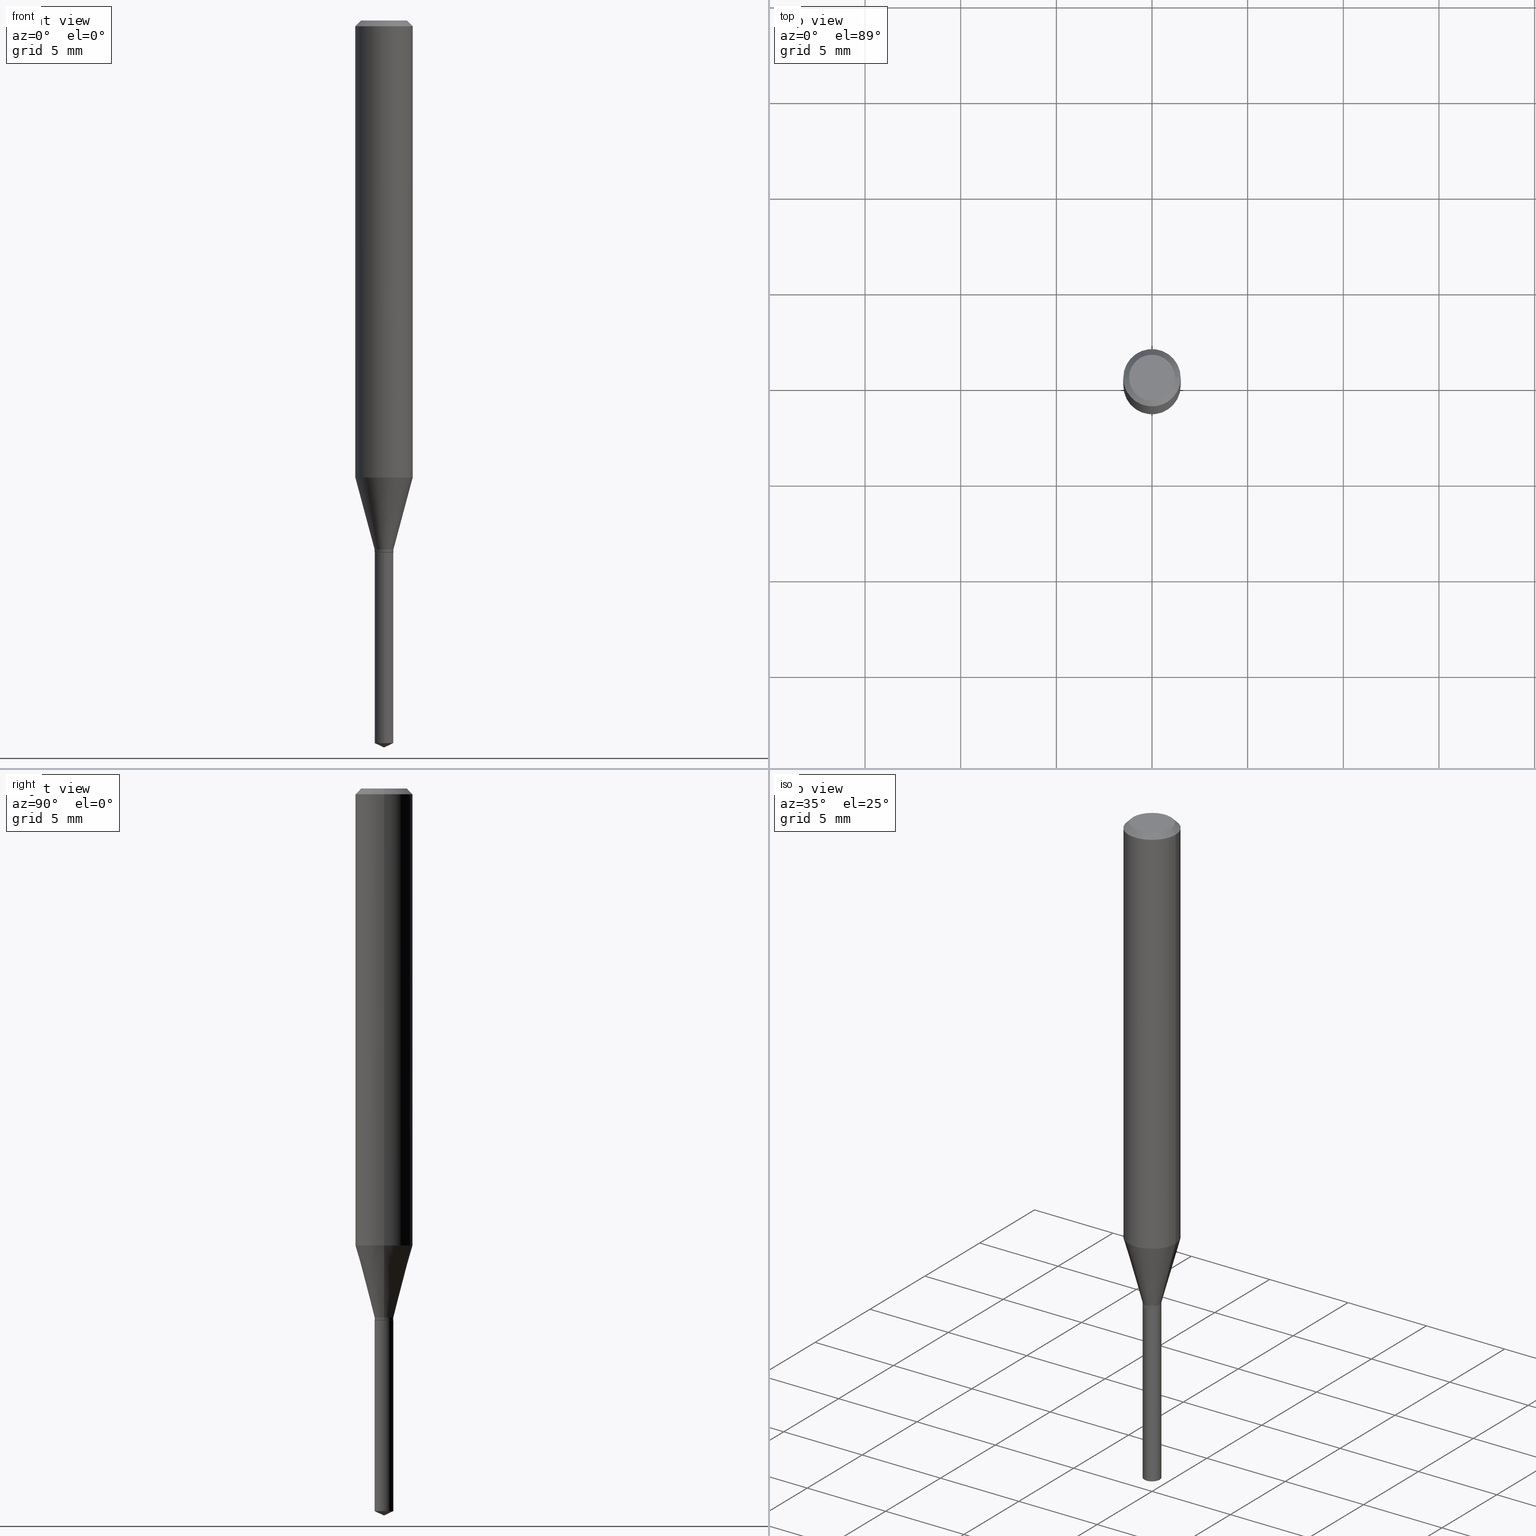
[diagram: canonical four-view strip — front | top / right | iso, engineering-drawing reading convention]
A machine part, canonical four-view strip (front | top / right | iso — engineering-drawing reading convention). The complete STEP part file that produces these views, byte-faithful:
ISO-10303-21;
HEADER;
FILE_DESCRIPTION (( 'STEP AP203' ),
    '1' );
FILE_NAME ('07822.STEP',
    '2024-04-24T03:48:45',
    ( '' ),
    ( '' ),
    'SwSTEP 2.0',
    'SolidWorks 2023',
    '' );
FILE_SCHEMA (( 'CONFIG_CONTROL_DESIGN' ));
ENDSEC;

DATA;
#1 = VERTEX_POINT ( 'NONE', #330 ) ;
#2 = CARTESIAN_POINT ( 'NONE',  ( 3.658668015054778287E-29, -5.223602213574301462E-15, -1.496099999999999985 ) ) ;
#3 = AXIS2_PLACEMENT_3D ( 'NONE', #60, #381, #70 ) ;
#4 = EDGE_CURVE ( 'NONE', #147, #250, #72, .T. ) ;
#5 = ADVANCED_FACE ( 'NONE', ( #436 ), #48, .T. ) ;
#6 = DIRECTION ( 'NONE',  ( -2.445468806185136877E-29, 3.491481338843145188E-15, 1.000000000000000000 ) ) ;
#7 = LINE ( 'NONE', #202, #20 ) ;
#8 = CYLINDRICAL_SURFACE ( 'NONE', #448, 0.01930000000000000118 ) ;
#9 = ADVANCED_FACE ( 'NONE', ( #274 ), #100, .T. ) ;
#10 = DIRECTION ( 'NONE',  ( 1.000000000000000000, -6.982962677686265133E-15, 4.876176775795935232E-29 ) ) ;
#11 = CARTESIAN_POINT ( 'NONE',  ( 8.265746106709734507E-48, -1.180129479067563789E-33, -3.380025165646692144E-19 ) ) ;
#12 = AXIS2_PLACEMENT_3D ( 'NONE', #333, #395, #93 ) ;
#13 = DIRECTION ( 'NONE',  ( -2.445468806185136597E-29, 3.491481338843145583E-15, 1.000000000000000000 ) ) ;
#14 = CARTESIAN_POINT ( 'NONE',  ( 3.636657855806963500E-29, -5.192182022620209705E-15, -1.487100262197608380 ) ) ;
#15 = ORIENTED_EDGE ( 'NONE', *, *, #284, .T. ) ;
#16 = DIRECTION ( 'NONE',  ( 1.000000000000000000, -6.982962677686266711E-15, 4.876185090822587894E-29 ) ) ;
#17 = CARTESIAN_POINT ( 'NONE',  ( 1.371347480017260423E-16, 0.01929999999999617785, -1.094499999999999806 ) ) ;
#18 = FACE_OUTER_BOUND ( 'NONE', #171, .T. ) ;
#19 = EDGE_CURVE ( 'NONE', #163, #302, #27, .T. ) ;
#20 = VECTOR ( 'NONE', #319, 39.37007874015748143 ) ;
#21 = DIRECTION ( 'NONE',  ( 2.445468806185136597E-29, -3.491481338843145583E-15, -1.000000000000000000 ) ) ;
#22 = FACE_OUTER_BOUND ( 'NONE', #489, .T. ) ;
#23 = COORDINATED_UNIVERSAL_TIME_OFFSET ( 5, 0, .BEHIND. ) ;
#24 = DIRECTION ( 'NONE',  ( -2.445468806185136597E-29, 3.491481338843145583E-15, 1.000000000000000000 ) ) ;
#25 = EDGE_CURVE ( 'NONE', #481, #386, #168, .T. ) ;
#26 = DIRECTION ( 'NONE',  ( -0.2588190451025213501, 5.211531920934551042E-15, 0.9659258262890682012 ) ) ;
#27 = CIRCLE ( 'NONE', #120, 0.01880000000000000074 ) ;
#28 = CONICAL_SURFACE ( 'NONE', #391, 0.05904999999999999832, 0.7853981633974452814 ) ;
#29 = CARTESIAN_POINT ( 'NONE',  ( 0.01930000000000000118, -3.954451764373745290E-15, -1.093999999999999861 ) ) ;
#30 = EDGE_LOOP ( 'NONE', ( #236, #430, #75, #451 ) ) ;
#31 = ORIENTED_EDGE ( 'NONE', *, *, #174, .T. ) ;
#32 = ORIENTED_EDGE ( 'NONE', *, *, #110, .T. ) ;
#33 = CC_DESIGN_PERSON_AND_ORGANIZATION_ASSIGNMENT ( #152, #387, ( #241 ) ) ;
#34 =( GEOMETRIC_REPRESENTATION_CONTEXT ( 3 ) GLOBAL_UNCERTAINTY_ASSIGNED_CONTEXT ( ( #394 ) ) GLOBAL_UNIT_ASSIGNED_CONTEXT ( ( #55, #218, #364 ) ) REPRESENTATION_CONTEXT ( 'NONE', 'WORKASPACE' ) );
#35 = COORDINATED_UNIVERSAL_TIME_OFFSET ( 5, 0, .BEHIND. ) ;
#36 = APPROVAL_STATUS ( 'not_yet_approved' ) ;
#37 = ORIENTED_EDGE ( 'NONE', *, *, #444, .T. ) ;
#38 = ORIENTED_EDGE ( 'NONE', *, *, #187, .F. ) ;
#39 = CC_DESIGN_PERSON_AND_ORGANIZATION_ASSIGNMENT ( #482, #184, ( #342 ) ) ;
#40 = EDGE_CURVE ( 'NONE', #1, #348, #95, .T. ) ;
#41 = CLOSED_SHELL ( 'NONE', ( #97, #81, #211, #413, #434 ) ) ;
#42 = CARTESIAN_POINT ( 'NONE',  ( 4.132873053354867254E-48, -5.900647395337818946E-34, -1.690012582823346072E-19 ) ) ;
#43 = APPROVAL_ROLE ( '' ) ;
#44 = CARTESIAN_POINT ( 'NONE',  ( 0.000000000000000000, 0.000000000000000000, 0.000000000000000000 ) ) ;
#45 = LINE ( 'NONE', #128, #361 ) ;
#46 = FACE_OUTER_BOUND ( 'NONE', #485, .T. ) ;
#47 = CARTESIAN_POINT ( 'NONE',  ( -0.05904999999999999832, -1.242650661852750737E-15, -0.01181000000000006871 ) ) ;
#48 = CYLINDRICAL_SURFACE ( 'NONE', #79, 0.01930000000000000118 ) ;
#49 = DIRECTION ( 'NONE',  ( 2.445470214571801836E-29, -3.491479321953280158E-15, -1.000000000000000000 ) ) ;
#50 = CARTESIAN_POINT ( 'NONE',  ( 2.676565608369631794E-29, -3.821426325363822773E-15, -1.094499999999999806 ) ) ;
#51 = AXIS2_PLACEMENT_3D ( 'NONE', #227, #142, #300 ) ;
#52 = CARTESIAN_POINT ( 'NONE',  ( 2.888098660104663328E-31, -4.123439461173779030E-17, -0.01181000000000006871 ) ) ;
#53 = CONICAL_SURFACE ( 'NONE', #437, 0.05904999999999999832, 0.7853981633974452814 ) ;
#54 = DIRECTION ( 'NONE',  ( -0.7071067811865453523, 2.468850131082234184E-15, -0.7071067811865496822 ) ) ;
#55 =( CONVERSION_BASED_UNIT ( 'INCH', #133 ) LENGTH_UNIT ( ) NAMED_UNIT ( #424 ) );
#56 = DIRECTION ( 'NONE',  ( 1.000000000000000000, -6.982962677686261977E-15, 0.000000000000000000 ) ) ;
#57 = PRODUCT_DEFINITION ( 'UNKNOWN', '', #287, #329 ) ;
#58 = CARTESIAN_POINT ( 'NONE',  ( 2.299598989431700529E-29, -3.283217900026443125E-15, -0.9403509803991370042 ) ) ;
#59 = PLANE ( 'NONE',  #461 ) ;
#60 = CARTESIAN_POINT ( 'NONE',  ( 2.662381889293757988E-29, -3.801175733598532543E-15, -1.088700000000000001 ) ) ;
#61 = PERSON_AND_ORGANIZATION ( #415, #96 ) ;
#62 = AXIS2_PLACEMENT_3D ( 'NONE', #224, #407, #65 ) ;
#63 = APPROVAL_PERSON_ORGANIZATION ( #488, #456, #43 ) ;
#64 = CARTESIAN_POINT ( 'NONE',  ( 3.636657855806963500E-29, -5.192182022620209705E-15, -1.487100262197608380 ) ) ;
#65 = DIRECTION ( 'NONE',  ( 1.000000000000000000, -6.982962677686266711E-15, 0.000000000000000000 ) ) ;
#66 = PERSON_AND_ORGANIZATION_ROLE ( 'creator' ) ;
#67 = FACE_OUTER_BOUND ( 'NONE', #385, .T. ) ;
#68 = FACE_OUTER_BOUND ( 'NONE', #116, .T. ) ;
#69 = EDGE_CURVE ( 'NONE', #251, #367, #486, .T. ) ;
#70 = DIRECTION ( 'NONE',  ( 1.000000000000000000, -6.982962677686261977E-15, 0.000000000000000000 ) ) ;
#71 = CARTESIAN_POINT ( 'NONE',  ( -0.01880000000000000074, -3.685195063866812461E-15, -1.094499999999999806 ) ) ;
#72 = CIRCLE ( 'NONE', #460, 0.01930000000000000118 ) ;
#73 = ORIENTED_EDGE ( 'NONE', *, *, #291, .F. ) ;
#74 = CARTESIAN_POINT ( 'NONE',  ( 3.658664905062460986E-29, -5.223606628546217219E-15, -1.496099999999999985 ) ) ;
#75 = ORIENTED_EDGE ( 'NONE', *, *, #260, .T. ) ;
#76 = VERTEX_POINT ( 'NONE', #443 ) ;
#77 = CALENDAR_DATE ( 2024, 23, 4 ) ;
#78 = ORIENTED_EDGE ( 'NONE', *, *, #270, .T. ) ;
#79 = AXIS2_PLACEMENT_3D ( 'NONE', #360, #438, #10 ) ;
#80 = CALENDAR_DATE ( 2024, 23, 4 ) ;
#81 = ADVANCED_FACE ( 'NONE', ( #479 ), #203, .T. ) ;
#82 = ORIENTED_EDGE ( 'NONE', *, *, #270, .F. ) ;
#83 = DATE_AND_TIME ( #77, #347 ) ;
#84 = FACE_OUTER_BOUND ( 'NONE', #452, .T. ) ;
#85 = APPROVAL_DATE_TIME ( #351, #423 ) ;
#86 = CONICAL_SURFACE ( 'NONE', #246, 0.01930000000000000118, 0.2617993877991500740 ) ;
#87 = CYLINDRICAL_SURFACE ( 'NONE', #355, 0.05905000000000005383 ) ;
#88 = EDGE_CURVE ( 'NONE', #188, #348, #405, .T. ) ;
#89 = ORIENTED_EDGE ( 'NONE', *, *, #480, .F. ) ;
#90 = DIRECTION ( 'NONE',  ( 6.982962677686265922E-15, 1.000000000000000000, -3.491479321953280158E-15 ) ) ;
#91 = DIRECTION ( 'NONE',  ( -2.438088387897960049E-29, 3.491481338843145188E-15, 1.000000000000000000 ) ) ;
#92 = CC_DESIGN_DATE_AND_TIME_ASSIGNMENT ( #196, #269, ( #241 ) ) ;
#93 = DIRECTION ( 'NONE',  ( 1.000000000000000000, -6.982962677686260400E-15, 0.000000000000000000 ) ) ;
#94 = CARTESIAN_POINT ( 'NONE',  ( -0.01930000000000000118, -3.673293411144767685E-15, -1.088700000000000001 ) ) ;
#95 = CIRCLE ( 'NONE', #421, 0.05905000000000010935 ) ;
#96 = ORGANIZATION ( 'UNSPECIFIED', 'UNSPECIFIED', '' ) ;
#97 = ADVANCED_FACE ( 'NONE', ( #22 ), #230, .T. ) ;
#98 = CARTESIAN_POINT ( 'NONE',  ( 2.888098660104663328E-31, -4.123439461173779030E-17, -0.01181000000000006871 ) ) ;
#99 = EDGE_CURVE ( 'NONE', #302, #163, #232, .T. ) ;
#100 = CYLINDRICAL_SURFACE ( 'NONE', #414, 0.05905000000000005383 ) ;
#101 = FACE_OUTER_BOUND ( 'NONE', #268, .T. ) ;
#102 = DIRECTION ( 'NONE',  ( 1.000000000000000000, -6.982962677686261977E-15, 0.000000000000000000 ) ) ;
#103 = CARTESIAN_POINT ( 'NONE',  ( 0.01930000000000000118, -1.347711796793449319E-16, 9.411021177286156094E-31 ) ) ;
#104 = CARTESIAN_POINT ( 'NONE',  ( 2.675342873966538993E-29, -3.819680584694400481E-15, -1.093999999999999861 ) ) ;
#105 = PERSON_AND_ORGANIZATION ( #415, #96 ) ;
#106 = VECTOR ( 'NONE', #26, 39.37007874015747433 ) ;
#107 = CONICAL_SURFACE ( 'NONE', #195, 0.01930000000000000118, 0.2617993877991500740 ) ;
#108 = EDGE_CURVE ( 'NONE', #76, #188, #276, .T. ) ;
#109 = DIRECTION ( 'NONE',  ( -2.445470214571802116E-29, 3.491479321953280158E-15, 1.000000000000000000 ) ) ;
#110 = EDGE_CURVE ( 'NONE', #250, #147, #441, .T. ) ;
#111 = FACE_OUTER_BOUND ( 'NONE', #306, .T. ) ;
#112 = DIRECTION ( 'NONE',  ( -2.445468806185136597E-29, 3.491481338843145583E-15, 1.000000000000000000 ) ) ;
#113 = EDGE_LOOP ( 'NONE', ( #155, #427, #465, #194 ) ) ;
#114 = ORIENTED_EDGE ( 'NONE', *, *, #179, .F. ) ;
#115 = ORIENTED_EDGE ( 'NONE', *, *, #4, .T. ) ;
#116 = EDGE_LOOP ( 'NONE', ( #197, #119, #234, #305 ) ) ;
#117 = ORIENTED_EDGE ( 'NONE', *, *, #231, .F. ) ;
#118 = APPROVAL_STATUS ( 'not_yet_approved' ) ;
#119 = ORIENTED_EDGE ( 'NONE', *, *, #88, .T. ) ;
#120 = AXIS2_PLACEMENT_3D ( 'NONE', #356, #165, #432 ) ;
#121 = LOCAL_TIME ( 23, 48, 45.00000000000000000, #23 ) ;
#122 = CARTESIAN_POINT ( 'NONE',  ( -9.261968845786000133E-28, 1.322362114038720264E-13, 37.87397874015748300 ) ) ;
#123 = PERSON_AND_ORGANIZATION ( #415, #96 ) ;
#124 = CARTESIAN_POINT ( 'NONE',  ( -0.01930000000000000118, -3.673293411144767685E-15, -1.093999999999999861 ) ) ;
#125 = CARTESIAN_POINT ( 'NONE',  ( 0.05904999999999999832, -4.535783407291118600E-16, -0.01181000000000006871 ) ) ;
#126 = EDGE_CURVE ( 'NONE', #188, #76, #223, .T. ) ;
#127 = AXIS2_PLACEMENT_3D ( 'NONE', #50, #13, #464 ) ;
#128 = CARTESIAN_POINT ( 'NONE',  ( -0.05904999999999999832, 3.711095515056362547E-16, -0.01181000000000006871 ) ) ;
#129 = VECTOR ( 'NONE', #357, 39.37007874015748143 ) ;
#130 = DIRECTION ( 'NONE',  ( 1.000000000000000000, -6.982962677686261977E-15, 0.000000000000000000 ) ) ;
#131 = FACE_OUTER_BOUND ( 'NONE', #417, .T. ) ;
#132 = DIRECTION ( 'NONE',  ( 1.000000000000000000, -6.982962677686266711E-15, 4.876176775795935793E-29 ) ) ;
#133 = LENGTH_MEASURE_WITH_UNIT ( LENGTH_MEASURE( 0.02539999999999999897 ), #248 );
#134 = DIRECTION ( 'NONE',  ( -0.7071067811865218156, 7.493145998870261075E-15, 0.7071067811865732189 ) ) ;
#135 = DIRECTION ( 'NONE',  ( 0.7071067811865453523, -7.319954787623248157E-15, -0.7071067811865496822 ) ) ;
#136 = EDGE_CURVE ( 'NONE', #386, #481, #154, .T. ) ;
#137 = DIRECTION ( 'NONE',  ( -2.445468806185136597E-29, 3.491481338843145583E-15, 1.000000000000000000 ) ) ;
#138 = AXIS2_PLACEMENT_3D ( 'NONE', #384, #153, #450 ) ;
#139 = DIRECTION ( 'NONE',  ( -2.445470214571802116E-29, 3.491479321953280158E-15, 1.000000000000000000 ) ) ;
#140 = CARTESIAN_POINT ( 'NONE',  ( -0.05905000000000010241, -2.863642414560104027E-15, -0.9403509803991370042 ) ) ;
#141 = DIRECTION ( 'NONE',  ( -2.445468806185136597E-29, 3.491481338843145583E-15, 1.000000000000000000 ) ) ;
#142 = DIRECTION ( 'NONE',  ( -2.445468806185136597E-29, 3.491481338843145583E-15, 1.000000000000000000 ) ) ;
#143 = VECTOR ( 'NONE', #292, 39.37007874015748143 ) ;
#144 = LINE ( 'NONE', #288, #338 ) ;
#145 = CARTESIAN_POINT ( 'NONE',  ( 2.676565608369631794E-29, -3.821426325363822773E-15, -1.094499999999999806 ) ) ;
#146 = DATE_AND_TIME ( #376, #121 ) ;
#147 = VERTEX_POINT ( 'NONE', #29 ) ;
#148 = CALENDAR_DATE ( 2024, 23, 4 ) ;
#149 = ORIENTED_EDGE ( 'NONE', *, *, #284, .F. ) ;
#150 = EDGE_LOOP ( 'NONE', ( #303, #217 ) ) ;
#151 = DIRECTION ( 'NONE',  ( -2.445468806185136877E-29, 3.491481338843145188E-15, 1.000000000000000000 ) ) ;
#152 = PERSON_AND_ORGANIZATION ( #415, #96 ) ;
#153 = DIRECTION ( 'NONE',  ( -2.445470214571802116E-29, 3.491479321953280158E-15, 1.000000000000000000 ) ) ;
#154 = CIRCLE ( 'NONE', #62, 0.05904999999999999832 ) ;
#155 = ORIENTED_EDGE ( 'NONE', *, *, #19, .T. ) ;
#156 = APPROVAL_DATE_TIME ( #83, #456 ) ;
#157 = ORIENTED_EDGE ( 'NONE', *, *, #25, .F. ) ;
#158 = PERSON_AND_ORGANIZATION ( #415, #96 ) ;
#159 = ORIENTED_EDGE ( 'NONE', *, *, #88, .F. ) ;
#160 = CALENDAR_DATE ( 2024, 23, 4 ) ;
#161 = CARTESIAN_POINT ( 'NONE',  ( -1.347711796793085704E-16, -0.01930000000000519148, -1.487100262197608380 ) ) ;
#162 = LOCAL_TIME ( 23, 48, 45.00000000000000000, #35 ) ;
#163 = VERTEX_POINT ( 'NONE', #220 ) ;
#164 = ORIENTED_EDGE ( 'NONE', *, *, #352, .F. ) ;
#165 = DIRECTION ( 'NONE',  ( -2.445468806185136597E-29, 3.491481338843145583E-15, 1.000000000000000000 ) ) ;
#166 = CARTESIAN_POINT ( 'NONE',  ( -0.01930000000000000118, 1.371347480016993443E-16, -9.493544724191968282E-31 ) ) ;
#167 = ORIENTED_EDGE ( 'NONE', *, *, #136, .F. ) ;
#168 = CIRCLE ( 'NONE', #256, 0.05904999999999999832 ) ;
#169 = CARTESIAN_POINT ( 'NONE',  ( 0.000000000000000000, 0.000000000000000000, 0.000000000000000000 ) ) ;
#170 = VECTOR ( 'NONE', #341, 39.37007874015747433 ) ;
#171 = EDGE_LOOP ( 'NONE', ( #440, #78, #281, #261 ) ) ;
#172 = DIRECTION ( 'NONE',  ( -6.982962677686265133E-15, -1.000000000000000000, 0.000000000000000000 ) ) ;
#173 = DIRECTION ( 'NONE',  ( -2.445470214571802116E-29, 3.491479321953280158E-15, 1.000000000000000000 ) ) ;
#174 = EDGE_CURVE ( 'NONE', #175, #367, #370, .T. ) ;
#175 = VERTEX_POINT ( 'NONE', #181 ) ;
#176 = DIRECTION ( 'NONE',  ( -2.445470214571802116E-29, 3.491479321953280158E-15, 1.000000000000000000 ) ) ;
#177 = AXIS2_PLACEMENT_3D ( 'NONE', #401, #176, #172 ) ;
#178 = DIRECTION ( 'NONE',  ( -1.000000000000000000, 6.982962677686266711E-15, 0.000000000000000000 ) ) ;
#179 = EDGE_CURVE ( 'NONE', #1, #481, #336, .T. ) ;
#180 = FACE_OUTER_BOUND ( 'NONE', #30, .T. ) ;
#181 = CARTESIAN_POINT ( 'NONE',  ( 1.371347480017357058E-16, 0.01929999999999481436, -1.487100262197608380 ) ) ;
#182 = MECHANICAL_CONTEXT ( 'NONE', #359, 'mechanical' ) ;
#183 = CARTESIAN_POINT ( 'NONE',  ( 2.299598989431700529E-29, -3.283217900026443125E-15, -0.9403509803991370042 ) ) ;
#184 = PERSON_AND_ORGANIZATION_ROLE ( 'design_owner' ) ;
#185 = CC_DESIGN_APPROVAL ( #412, ( #57 ) ) ;
#186 = DIRECTION ( 'NONE',  ( -6.982962677686267499E-15, -1.000000000000000000, 3.520397390770475169E-15 ) ) ;
#187 = EDGE_CURVE ( 'NONE', #250, #188, #249, .T. ) ;
#188 = VERTEX_POINT ( 'NONE', #94 ) ;
#189 = ORIENTED_EDGE ( 'NONE', *, *, #260, .F. ) ;
#190 = CARTESIAN_POINT ( 'NONE',  ( 0.000000000000000000, 0.000000000000000000, 0.000000000000000000 ) ) ;
#191 = ORIENTED_EDGE ( 'NONE', *, *, #69, .F. ) ;
#192 = DIRECTION ( 'NONE',  ( -2.445468806185136597E-29, 3.491481338843145583E-15, 1.000000000000000000 ) ) ;
#193 = AXIS2_PLACEMENT_3D ( 'NONE', #14, #455, #272 ) ;
#194 = ORIENTED_EDGE ( 'NONE', *, *, #366, .F. ) ;
#195 = AXIS2_PLACEMENT_3D ( 'NONE', #377, #192, #130 ) ;
#196 = DATE_AND_TIME ( #160, #162 ) ;
#197 = ORIENTED_EDGE ( 'NONE', *, *, #108, .T. ) ;
#198 = ADVANCED_FACE ( 'NONE', ( #362 ), #469, .T. ) ;
#199 = PRODUCT_RELATED_PRODUCT_CATEGORY ( 'detail', '', ( #342 ) ) ;
#200 = ORIENTED_EDGE ( 'NONE', *, *, #416, .T. ) ;
#201 = ORIENTED_EDGE ( 'NONE', *, *, #221, .F. ) ;
#202 = CARTESIAN_POINT ( 'NONE',  ( 0.01880000000000000074, -3.952706023704324575E-15, -1.094499999999999806 ) ) ;
#203 = CONICAL_SURFACE ( 'NONE', #476, 84.42940631927382356, 1.134464013796313564 ) ;
#204 = APPROVAL_PERSON_ORGANIZATION ( #158, #423, #266 ) ;
#205 = DIRECTION ( 'NONE',  ( 2.438088387897960049E-29, -3.491481338843145188E-15, -1.000000000000000000 ) ) ;
#206 = CC_DESIGN_PERSON_AND_ORGANIZATION_ASSIGNMENT ( #490, #314, ( #287 ) ) ;
#207 = ORIENTED_EDGE ( 'NONE', *, *, #40, .T. ) ;
#208 = DIRECTION ( 'NONE',  ( -2.445468806185136597E-29, 3.491481338843145583E-15, 1.000000000000000000 ) ) ;
#209 = ORIENTED_EDGE ( 'NONE', *, *, #480, .T. ) ;
#210 = DIRECTION ( 'NONE',  ( 1.000000000000000000, -6.982962677686267499E-15, 0.000000000000000000 ) ) ;
#211 = ADVANCED_FACE ( 'NONE', ( #131 ), #213, .T. ) ;
#212 = AXIS2_PLACEMENT_3D ( 'NONE', #145, #141, #446 ) ;
#213 = CONICAL_SURFACE ( 'NONE', #297, 84.42940631927382356, 1.134464013796313564 ) ;
#214 = CIRCLE ( 'NONE', #442, 0.05905000000000010935 ) ;
#215 = DIRECTION ( 'NONE',  ( -2.445468806185136597E-29, 3.491481338843145583E-15, 1.000000000000000000 ) ) ;
#216 = LINE ( 'NONE', #327, #477 ) ;
#217 = ORIENTED_EDGE ( 'NONE', *, *, #99, .F. ) ;
#218 =( NAMED_UNIT ( * ) PLANE_ANGLE_UNIT ( ) SI_UNIT ( $, .RADIAN. ) );
#219 = CARTESIAN_POINT ( 'NONE',  ( 8.265746106709734507E-48, -1.180129479067563789E-33, -3.380025165646692144E-19 ) ) ;
#220 = CARTESIAN_POINT ( 'NONE',  ( 0.01880000000000000074, -3.952706023704324575E-15, -1.094499999999999806 ) ) ;
#221 = EDGE_CURVE ( 'NONE', #302, #250, #216, .T. ) ;
#222 = DIRECTION ( 'NONE',  ( 1.000000000000000000, -6.982962677686266711E-15, 4.876185090822587894E-29 ) ) ;
#223 = CIRCLE ( 'NONE', #3, 0.01930000000000000118 ) ;
#224 = CARTESIAN_POINT ( 'NONE',  ( 2.888098660104663328E-31, -4.123439461173779030E-17, -0.01181000000000006871 ) ) ;
#225 = APPROVAL_DATE_TIME ( #295, #412 ) ;
#226 = CC_DESIGN_PERSON_AND_ORGANIZATION_ASSIGNMENT ( #123, #238, ( #287 ) ) ;
#227 = CARTESIAN_POINT ( 'NONE',  ( 2.662381889293757988E-29, -3.801175733598532543E-15, -1.088700000000000001 ) ) ;
#228 = APPROVAL_ROLE ( '' ) ;
#229 = ADVANCED_FACE ( 'NONE', ( #435 ), #8, .T. ) ;
#230 = CYLINDRICAL_SURFACE ( 'NONE', #454, 0.01930000000000000118 ) ;
#231 = EDGE_CURVE ( 'NONE', #348, #386, #324, .T. ) ;
#232 = CIRCLE ( 'NONE', #212, 0.01880000000000000074 ) ;
#233 = AXIS2_PLACEMENT_3D ( 'NONE', #64, #375, #316 ) ;
#234 = ORIENTED_EDGE ( 'NONE', *, *, #40, .F. ) ;
#235 = DIRECTION ( 'NONE',  ( -6.328713451373366223E-15, -0.9063077870366481603, 0.4226182617407031605 ) ) ;
#236 = ORIENTED_EDGE ( 'NONE', *, *, #416, .F. ) ;
#237 = ORIENTED_EDGE ( 'NONE', *, *, #400, .T. ) ;
#238 = PERSON_AND_ORGANIZATION_ROLE ( 'design_supplier' ) ;
#239 = CLOSED_SHELL ( 'NONE', ( #445, #310, #422, #337, #5, #229, #408, #9, #313, #271, #393, #198 ) ) ;
#240 = ORIENTED_EDGE ( 'NONE', *, *, #350, .T. ) ;
#241 = SECURITY_CLASSIFICATION ( '', '', #425 ) ;
#242 = EDGE_LOOP ( 'NONE', ( #115, #484, #453, #149 ) ) ;
#243 = ORIENTED_EDGE ( 'NONE', *, *, #25, .T. ) ;
#244 = LINE ( 'NONE', #275, #170 ) ;
#245 = SHAPE_DEFINITION_REPRESENTATION ( #296, #315 ) ;
#246 = AXIS2_PLACEMENT_3D ( 'NONE', #473, #24, #56 ) ;
#247 = EDGE_LOOP ( 'NONE', ( #201, #390, #419, #318 ) ) ;
#248 =( LENGTH_UNIT ( ) NAMED_UNIT ( * ) SI_UNIT ( $, .METRE. ) );
#249 = LINE ( 'NONE', #166, #346 ) ;
#250 = VERTEX_POINT ( 'NONE', #124 ) ;
#251 = VERTEX_POINT ( 'NONE', #399 ) ;
#252 = CARTESIAN_POINT ( 'NONE',  ( 2.676565608369631794E-29, -3.821426325363822773E-15, -1.094499999999999806 ) ) ;
#253 = DIRECTION ( 'NONE',  ( -2.445468806185136877E-29, 3.491481338843145188E-15, 1.000000000000000000 ) ) ;
#254 = FACE_OUTER_BOUND ( 'NONE', #113, .T. ) ;
#255 = CARTESIAN_POINT ( 'NONE',  ( -9.261968845786000133E-28, 1.322362114038720264E-13, 37.87397874015748300 ) ) ;
#256 = AXIS2_PLACEMENT_3D ( 'NONE', #52, #215, #392 ) ;
#257 = CONICAL_SURFACE ( 'NONE', #12, 0.01880000000000000074, 0.7853981633974119747 ) ;
#258 = DIRECTION ( 'NONE',  ( -2.445470214571802396E-29, 3.491479321953280158E-15, 1.000000000000000000 ) ) ;
#259 = CARTESIAN_POINT ( 'NONE',  ( -0.01930000000000000118, -3.664040985596833322E-15, -1.088700000000000001 ) ) ;
#260 = EDGE_CURVE ( 'NONE', #278, #386, #45, .T. ) ;
#261 = ORIENTED_EDGE ( 'NONE', *, *, #400, .F. ) ;
#262 = CC_DESIGN_SECURITY_CLASSIFICATION ( #241, ( #287 ) ) ;
#263 = ORIENTED_EDGE ( 'NONE', *, *, #350, .F. ) ;
#264 = ORIENTED_EDGE ( 'NONE', *, *, #339, .F. ) ;
#265 = ORIENTED_EDGE ( 'NONE', *, *, #231, .T. ) ;
#266 = APPROVAL_ROLE ( '' ) ;
#267 = AXIS2_PLACEMENT_3D ( 'NONE', #378, #109, #294 ) ;
#268 = EDGE_LOOP ( 'NONE', ( #207, #265, #157, #114 ) ) ;
#269 = DATE_TIME_ROLE ( 'classification_date' ) ;
#270 = EDGE_CURVE ( 'NONE', #175, #353, #372, .T. ) ;
#271 = ADVANCED_FACE ( 'NONE', ( #84 ), #317, .F. ) ;
#272 = DIRECTION ( 'NONE',  ( -6.982962677686265133E-15, -1.000000000000000000, 0.000000000000000000 ) ) ;
#273 = CARTESIAN_POINT ( 'NONE',  ( -0.04724000000000000421, 3.504923541997677355E-16, -3.380025165670481712E-19 ) ) ;
#274 = FACE_OUTER_BOUND ( 'NONE', #363, .T. ) ;
#275 = CARTESIAN_POINT ( 'NONE',  ( 0.01930000000000000118, -3.935946913277877352E-15, -1.088700000000000001 ) ) ;
#276 = CIRCLE ( 'NONE', #51, 0.01930000000000000118 ) ;
#277 = LOCAL_TIME ( 23, 48, 45.00000000000000000, #334 ) ;
#278 = VERTEX_POINT ( 'NONE', #273 ) ;
#279 = ORIENTED_EDGE ( 'NONE', *, *, #352, .T. ) ;
#280 = DIRECTION ( 'NONE',  ( -2.445468806185136597E-29, 3.491481338843145583E-15, 1.000000000000000000 ) ) ;
#281 = ORIENTED_EDGE ( 'NONE', *, *, #291, .T. ) ;
#282 = VERTEX_POINT ( 'NONE', #358 ) ;
#283 = DIRECTION ( 'NONE',  ( -2.445468806185136597E-29, 3.491481338843145583E-15, 1.000000000000000000 ) ) ;
#284 = EDGE_CURVE ( 'NONE', #147, #76, #320, .T. ) ;
#285 = DIRECTION ( 'NONE',  ( -6.982962677686267499E-15, -1.000000000000000000, 3.520397390770475169E-15 ) ) ;
#286 = CARTESIAN_POINT ( 'NONE',  ( 0.04724000000000000421, -3.852183633974369345E-16, -3.380025165621689721E-19 ) ) ;
#287 = PRODUCT_DEFINITION_FORMATION_WITH_SPECIFIED_SOURCE ( 'ANY', '', #342, .NOT_KNOWN. ) ;
#288 = CARTESIAN_POINT ( 'NONE',  ( -1.347711796793181600E-16, -0.01930000000000382104, -1.094499999999999806 ) ) ;
#289 = DIRECTION ( 'NONE',  ( 1.000000000000000000, -6.982962677686261977E-15, 0.000000000000000000 ) ) ;
#290 = APPLICATION_PROTOCOL_DEFINITION ( 'international standard', 'config_control_design', 1994, #359 ) ;
#291 = EDGE_CURVE ( 'NONE', #353, #251, #144, .T. ) ;
#292 = DIRECTION ( 'NONE',  ( -2.445468806185136877E-29, 3.491481338843145188E-15, 1.000000000000000000 ) ) ;
#293 = DIRECTION ( 'NONE',  ( -2.445470214571802116E-29, 3.491479321953280158E-15, 1.000000000000000000 ) ) ;
#294 = DIRECTION ( 'NONE',  ( -6.982962677686265133E-15, -1.000000000000000000, 0.000000000000000000 ) ) ;
#295 = DATE_AND_TIME ( #148, #277 ) ;
#296 = PRODUCT_DEFINITION_SHAPE ( 'NONE', 'NONE',  #57 ) ;
#297 = AXIS2_PLACEMENT_3D ( 'NONE', #122, #173, #285 ) ;
#298 = CARTESIAN_POINT ( 'NONE',  ( 0.05905000000000005383, -4.123439461173744271E-16, 2.879382386107502672E-30 ) ) ;
#299 = CIRCLE ( 'NONE', #389, 0.04724000000000000421 ) ;
#300 = DIRECTION ( 'NONE',  ( 1.000000000000000000, -6.982962677686261977E-15, 0.000000000000000000 ) ) ;
#301 = DATE_TIME_ROLE ( 'creation_date' ) ;
#302 = VERTEX_POINT ( 'NONE', #71 ) ;
#303 = ORIENTED_EDGE ( 'NONE', *, *, #19, .F. ) ;
#304 = AXIS2_PLACEMENT_3D ( 'NONE', #104, #474, #102 ) ;
#305 = ORIENTED_EDGE ( 'NONE', *, *, #368, .F. ) ;
#306 = EDGE_LOOP ( 'NONE', ( #264, #200, #243, #189 ) ) ;
#307 = COORDINATED_UNIVERSAL_TIME_OFFSET ( 5, 0, .BEHIND. ) ;
#308 = LINE ( 'NONE', #2, #129 ) ;
#309 = EDGE_LOOP ( 'NONE', ( #349, #279, #263 ) ) ;
#310 = ADVANCED_FACE ( 'NONE', ( #111 ), #53, .T. ) ;
#311 = AXIS2_PLACEMENT_3D ( 'NONE', #190, #472, #343 ) ;
#312 = CARTESIAN_POINT ( 'NONE',  ( 1.371347480017357551E-16, 0.01929999999999617785, -1.094499999999999806 ) ) ;
#313 = ADVANCED_FACE ( 'NONE', ( #180 ), #28, .T. ) ;
#314 = PERSON_AND_ORGANIZATION_ROLE ( 'creator' ) ;
#315 = ADVANCED_BREP_SHAPE_REPRESENTATION ( '07822', ( #322, #466, #311 ), #34 ) ;
#316 = DIRECTION ( 'NONE',  ( -6.982962677686265133E-15, -1.000000000000000000, 0.000000000000000000 ) ) ;
#317 = PLANE ( 'NONE',  #396 ) ;
#318 = ORIENTED_EDGE ( 'NONE', *, *, #110, .F. ) ;
#319 = DIRECTION ( 'NONE',  ( 0.7071067811865218156, -2.468850131081987665E-15, 0.7071067811865732189 ) ) ;
#320 = LINE ( 'NONE', #103, #143 ) ;
#321 = FACE_OUTER_BOUND ( 'NONE', #150, .T. ) ;
#322 = MANIFOLD_SOLID_BREP ( 'Body-Move/Copy2[1]', #41 ) ;
#323 = CIRCLE ( 'NONE', #138, 0.01930000000000000118 ) ;
#324 = LINE ( 'NONE', #431, #332 ) ;
#325 = CARTESIAN_POINT ( 'NONE',  ( 0.000000000000000000, 0.000000000000000000, 0.000000000000000000 ) ) ;
#326 = DIRECTION ( 'NONE',  ( 1.000000000000000000, -6.982962677686265922E-15, 4.876176775795935793E-29 ) ) ;
#327 = CARTESIAN_POINT ( 'NONE',  ( -0.01880000000000000074, -3.687844291040923662E-15, -1.094499999999999806 ) ) ;
#328 = APPLICATION_CONTEXT ( 'configuration controlled 3d designs of mechanical parts and assemblies' ) ;
#329 = DESIGN_CONTEXT ( 'detailed design', #328, 'design' ) ;
#330 = CARTESIAN_POINT ( 'NONE',  ( 0.05905000000000010241, -3.695561846143818440E-15, -0.9403509803991370042 ) ) ;
#331 = LINE ( 'NONE', #403, #449 ) ;
#332 = VECTOR ( 'NONE', #253, 39.37007874015748143 ) ;
#333 = CARTESIAN_POINT ( 'NONE',  ( 2.676565608369631794E-29, -3.821426325363822773E-15, -1.094499999999999806 ) ) ;
#334 = COORDINATED_UNIVERSAL_TIME_OFFSET ( 5, 0, .BEHIND. ) ;
#335 = CARTESIAN_POINT ( 'NONE',  ( 2.888098660104663328E-31, -4.123439461173779030E-17, -0.01181000000000006871 ) ) ;
#336 = LINE ( 'NONE', #298, #354 ) ;
#337 = ADVANCED_FACE ( 'NONE', ( #68 ), #86, .T. ) ;
#338 = VECTOR ( 'NONE', #258, 39.37007874015748143 ) ;
#339 = EDGE_CURVE ( 'NONE', #418, #278, #487, .T. ) ;
#340 = APPROVAL_PERSON_ORGANIZATION ( #61, #412, #228 ) ;
#341 = DIRECTION ( 'NONE',  ( 0.2588190451025213501, 1.565188264969621968E-15, 0.9659258262890682012 ) ) ;
#342 = PRODUCT ( '07822', '07822', '', ( #182 ) ) ;
#343 = DIRECTION ( 'NONE',  ( 1.000000000000000000, 0.000000000000000000, 0.000000000000000000 ) ) ;
#344 = ORIENTED_EDGE ( 'NONE', *, *, #126, .T. ) ;
#345 = ORIENTED_EDGE ( 'NONE', *, *, #339, .T. ) ;
#346 = VECTOR ( 'NONE', #6, 39.37007874015748143 ) ;
#347 = LOCAL_TIME ( 23, 48, 45.00000000000000000, #307 ) ;
#348 = VERTEX_POINT ( 'NONE', #140 ) ;
#349 = ORIENTED_EDGE ( 'NONE', *, *, #398, .F. ) ;
#350 = EDGE_CURVE ( 'NONE', #353, #175, #397, .T. ) ;
#351 = DATE_AND_TIME ( #80, #470 ) ;
#352 = EDGE_CURVE ( 'NONE', #282, #175, #308, .T. ) ;
#353 = VERTEX_POINT ( 'NONE', #161 ) ;
#354 = VECTOR ( 'NONE', #151, 39.37007874015748143 ) ;
#355 = AXIS2_PLACEMENT_3D ( 'NONE', #325, #280, #433 ) ;
#356 = CARTESIAN_POINT ( 'NONE',  ( 2.676565608369631794E-29, -3.821426325363822773E-15, -1.094499999999999806 ) ) ;
#357 = DIRECTION ( 'NONE',  ( 6.439704144417022464E-15, 0.9063077870366512689, 0.4226182617406968323 ) ) ;
#358 = CARTESIAN_POINT ( 'NONE',  ( 3.658667988020872822E-29, -5.223602213574301462E-15, -1.496099999999999985 ) ) ;
#359 = APPLICATION_CONTEXT ( 'configuration controlled 3d designs of mechanical parts and assemblies' ) ;
#360 = CARTESIAN_POINT ( 'NONE',  ( 0.000000000000000000, 0.000000000000000000, 0.000000000000000000 ) ) ;
#361 = VECTOR ( 'NONE', #54, 39.37007874015748143 ) ;
#362 = FACE_OUTER_BOUND ( 'NONE', #247, .T. ) ;
#363 = EDGE_LOOP ( 'NONE', ( #117, #209, #447, #167 ) ) ;
#364 =( NAMED_UNIT ( * ) SI_UNIT ( $, .STERADIAN. ) SOLID_ANGLE_UNIT ( ) );
#365 = CC_DESIGN_PERSON_AND_ORGANIZATION_ASSIGNMENT ( #105, #66, ( #57 ) ) ;
#366 = EDGE_CURVE ( 'NONE', #163, #147, #7, .T. ) ;
#367 = VERTEX_POINT ( 'NONE', #312 ) ;
#368 = EDGE_CURVE ( 'NONE', #76, #1, #244, .T. ) ;
#369 = DIRECTION ( 'NONE',  ( 2.445468806185136597E-29, -3.491481338843145583E-15, -1.000000000000000000 ) ) ;
#370 = LINE ( 'NONE', #17, #388 ) ;
#371 = CARTESIAN_POINT ( 'NONE',  ( 2.676565608369631794E-29, -3.821426325363822773E-15, -1.094499999999999806 ) ) ;
#372 = CIRCLE ( 'NONE', #193, 0.01930000000000000118 ) ;
#373 = AXIS2_PLACEMENT_3D ( 'NONE', #219, #404, #222 ) ;
#374 = DIRECTION ( 'NONE',  ( -2.445470214571802396E-29, 3.491479321953280158E-15, 1.000000000000000000 ) ) ;
#375 = DIRECTION ( 'NONE',  ( -2.445470214571802116E-29, 3.491479321953280158E-15, 1.000000000000000000 ) ) ;
#376 = CALENDAR_DATE ( 2024, 23, 4 ) ;
#377 = CARTESIAN_POINT ( 'NONE',  ( 2.662381889293757988E-29, -3.801175733598532543E-15, -1.088700000000000001 ) ) ;
#378 = CARTESIAN_POINT ( 'NONE',  ( 2.676565608369631794E-29, -3.821426325363822773E-15, -1.094499999999999806 ) ) ;
#379 = APPROVAL_STATUS ( 'not_yet_approved' ) ;
#380 = CC_DESIGN_APPROVAL ( #456, ( #287 ) ) ;
#381 = DIRECTION ( 'NONE',  ( -2.445468806185136597E-29, 3.491481338843145583E-15, 1.000000000000000000 ) ) ;
#382 = ORIENTED_EDGE ( 'NONE', *, *, #368, .T. ) ;
#383 = CC_DESIGN_DATE_AND_TIME_ASSIGNMENT ( #146, #301, ( #57 ) ) ;
#384 = CARTESIAN_POINT ( 'NONE',  ( 2.676565608369631794E-29, -3.821426325363822773E-15, -1.094499999999999806 ) ) ;
#385 = EDGE_LOOP ( 'NONE', ( #159, #344, #382, #89 ) ) ;
#386 = VERTEX_POINT ( 'NONE', #47 ) ;
#387 = PERSON_AND_ORGANIZATION_ROLE ( 'classification_officer' ) ;
#388 = VECTOR ( 'NONE', #374, 39.37007874015748143 ) ;
#389 = AXIS2_PLACEMENT_3D ( 'NONE', #11, #283, #16 ) ;
#390 = ORIENTED_EDGE ( 'NONE', *, *, #99, .T. ) ;
#391 = AXIS2_PLACEMENT_3D ( 'NONE', #335, #369, #178 ) ;
#392 = DIRECTION ( 'NONE',  ( 1.000000000000000000, -6.982962677686266711E-15, 0.000000000000000000 ) ) ;
#393 = ADVANCED_FACE ( 'NONE', ( #321 ), #59, .F. ) ;
#394 = UNCERTAINTY_MEASURE_WITH_UNIT (LENGTH_MEASURE( 1.000000000000000082E-05 ), #55, 'distance_accuracy_value', 'NONE');
#395 = DIRECTION ( 'NONE',  ( -2.445468806185136597E-29, 3.491481338843145583E-15, 1.000000000000000000 ) ) ;
#396 = AXIS2_PLACEMENT_3D ( 'NONE', #42, #205, #457 ) ;
#397 = CIRCLE ( 'NONE', #233, 0.01930000000000000118 ) ;
#398 = EDGE_CURVE ( 'NONE', #282, #353, #463, .T. ) ;
#399 = CARTESIAN_POINT ( 'NONE',  ( -1.347711796793181600E-16, -0.01930000000000382104, -1.094499999999999806 ) ) ;
#400 = EDGE_CURVE ( 'NONE', #367, #251, #323, .T. ) ;
#401 = CARTESIAN_POINT ( 'NONE',  ( 2.676565608369631794E-29, -3.821426325363822773E-15, -1.094499999999999806 ) ) ;
#402 = DIRECTION ( 'NONE',  ( -1.000000000000000000, 6.982962677686266711E-15, 0.000000000000000000 ) ) ;
#403 = CARTESIAN_POINT ( 'NONE',  ( 0.05904999999999999832, -4.463468013801466955E-16, -0.01181000000000006871 ) ) ;
#404 = DIRECTION ( 'NONE',  ( -2.445468806185136597E-29, 3.491481338843145583E-15, 1.000000000000000000 ) ) ;
#405 = LINE ( 'NONE', #259, #106 ) ;
#406 = VECTOR ( 'NONE', #235, 39.37007874015748854 ) ;
#407 = DIRECTION ( 'NONE',  ( -2.445468806185136597E-29, 3.491481338843145583E-15, 1.000000000000000000 ) ) ;
#408 = ADVANCED_FACE ( 'NONE', ( #67 ), #107, .T. ) ;
#409 = CARTESIAN_POINT ( 'NONE',  ( 2.676565608369631794E-29, -3.821426325363822773E-15, -1.094499999999999806 ) ) ;
#410 = APPLICATION_PROTOCOL_DEFINITION ( 'international standard', 'config_control_design', 1994, #328 ) ;
#411 = EDGE_LOOP ( 'NONE', ( #38, #32, #15, #459 ) ) ;
#412 = APPROVAL ( #379, 'UNSPECIFIED' ) ;
#413 = ADVANCED_FACE ( 'NONE', ( #18 ), #439, .T. ) ;
#414 = AXIS2_PLACEMENT_3D ( 'NONE', #44, #462, #132 ) ;
#415 = PERSON ( 'UNSPECIFIED', 'UNSPECIFIED', 'UNSPECIFIED', ('UNSPECIFIED'), ('UNSPECIFIED'), ('UNSPECIFIED') ) ;
#416 = EDGE_CURVE ( 'NONE', #418, #481, #331, .T. ) ;
#417 = EDGE_LOOP ( 'NONE', ( #164, #426, #82 ) ) ;
#418 = VERTEX_POINT ( 'NONE', #286 ) ;
#419 = ORIENTED_EDGE ( 'NONE', *, *, #366, .T. ) ;
#420 = COORDINATED_UNIVERSAL_TIME_OFFSET ( 5, 0, .BEHIND. ) ;
#421 = AXIS2_PLACEMENT_3D ( 'NONE', #183, #112, #475 ) ;
#422 = ADVANCED_FACE ( 'NONE', ( #101 ), #87, .T. ) ;
#423 = APPROVAL ( #36, 'UNSPECIFIED' ) ;
#424 = DIMENSIONAL_EXPONENTS ( 1.000000000000000000, 0.000000000000000000, 0.000000000000000000, 0.000000000000000000, 0.000000000000000000, 0.000000000000000000, 0.000000000000000000 ) ;
#425 = SECURITY_CLASSIFICATION_LEVEL ( 'unclassified' ) ;
#426 = ORIENTED_EDGE ( 'NONE', *, *, #398, .T. ) ;
#427 = ORIENTED_EDGE ( 'NONE', *, *, #221, .T. ) ;
#428 = AXIS2_PLACEMENT_3D ( 'NONE', #252, #49, #90 ) ;
#429 = PLANE ( 'NONE',  #428 ) ;
#430 = ORIENTED_EDGE ( 'NONE', *, *, #444, .F. ) ;
#431 = CARTESIAN_POINT ( 'NONE',  ( -0.05905000000000005383, 4.195754854663395423E-16, -2.904631170795524694E-30 ) ) ;
#432 = DIRECTION ( 'NONE',  ( 1.000000000000000000, -6.982962677686260400E-15, 0.000000000000000000 ) ) ;
#433 = DIRECTION ( 'NONE',  ( 1.000000000000000000, -6.982962677686266711E-15, 4.876176775795935793E-29 ) ) ;
#434 = ADVANCED_FACE ( 'NONE', ( #46 ), #429, .F. ) ;
#435 = FACE_OUTER_BOUND ( 'NONE', #411, .T. ) ;
#436 = FACE_OUTER_BOUND ( 'NONE', #242, .T. ) ;
#437 = AXIS2_PLACEMENT_3D ( 'NONE', #98, #21, #402 ) ;
#438 = DIRECTION ( 'NONE',  ( -2.445468806185136597E-29, 3.491481338843145583E-15, 1.000000000000000000 ) ) ;
#439 = CYLINDRICAL_SURFACE ( 'NONE', #177, 0.01930000000000000118 ) ;
#440 = ORIENTED_EDGE ( 'NONE', *, *, #174, .F. ) ;
#441 = CIRCLE ( 'NONE', #304, 0.01930000000000000118 ) ;
#442 = AXIS2_PLACEMENT_3D ( 'NONE', #58, #468, #210 ) ;
#443 = CARTESIAN_POINT ( 'NONE',  ( 0.01930000000000000118, -3.935946913277877352E-15, -1.088700000000000001 ) ) ;
#444 = EDGE_CURVE ( 'NONE', #278, #418, #299, .T. ) ;
#445 = ADVANCED_FACE ( 'NONE', ( #254 ), #257, .T. ) ;
#446 = DIRECTION ( 'NONE',  ( 1.000000000000000000, -6.982962677686260400E-15, 0.000000000000000000 ) ) ;
#447 = ORIENTED_EDGE ( 'NONE', *, *, #179, .T. ) ;
#448 = AXIS2_PLACEMENT_3D ( 'NONE', #169, #208, #458 ) ;
#449 = VECTOR ( 'NONE', #135, 39.37007874015748143 ) ;
#450 = DIRECTION ( 'NONE',  ( -6.982962677686265133E-15, -1.000000000000000000, 0.000000000000000000 ) ) ;
#451 = ORIENTED_EDGE ( 'NONE', *, *, #136, .T. ) ;
#452 = EDGE_LOOP ( 'NONE', ( #37, #345 ) ) ;
#453 = ORIENTED_EDGE ( 'NONE', *, *, #108, .F. ) ;
#454 = AXIS2_PLACEMENT_3D ( 'NONE', #409, #293, #471 ) ;
#455 = DIRECTION ( 'NONE',  ( -2.445470214571802116E-29, 3.491479321953280158E-15, 1.000000000000000000 ) ) ;
#456 = APPROVAL ( #118, 'UNSPECIFIED' ) ;
#457 = DIRECTION ( 'NONE',  ( -1.000000000000000000, 6.982962677686265922E-15, -4.876176775795935793E-29 ) ) ;
#458 = DIRECTION ( 'NONE',  ( 1.000000000000000000, -6.982962677686265133E-15, 4.876176775795935232E-29 ) ) ;
#459 = ORIENTED_EDGE ( 'NONE', *, *, #126, .F. ) ;
#460 = AXIS2_PLACEMENT_3D ( 'NONE', #467, #137, #289 ) ;
#461 = AXIS2_PLACEMENT_3D ( 'NONE', #371, #91, #326 ) ;
#462 = DIRECTION ( 'NONE',  ( -2.445468806185136597E-29, 3.491481338843145583E-15, 1.000000000000000000 ) ) ;
#463 = LINE ( 'NONE', #74, #406 ) ;
#464 = DIRECTION ( 'NONE',  ( 1.000000000000000000, -6.982962677686260400E-15, 0.000000000000000000 ) ) ;
#465 = ORIENTED_EDGE ( 'NONE', *, *, #4, .F. ) ;
#466 = MANIFOLD_SOLID_BREP ( 'Body-Move/Copy2[2]', #239 ) ;
#467 = CARTESIAN_POINT ( 'NONE',  ( 2.675342873966538993E-29, -3.819680584694400481E-15, -1.093999999999999861 ) ) ;
#468 = DIRECTION ( 'NONE',  ( -2.445468806185136597E-29, 3.491481338843145583E-15, 1.000000000000000000 ) ) ;
#469 = CONICAL_SURFACE ( 'NONE', #127, 0.01880000000000000074, 0.7853981633974119747 ) ;
#470 = LOCAL_TIME ( 23, 48, 45.00000000000000000, #420 ) ;
#471 = DIRECTION ( 'NONE',  ( -6.982962677686265133E-15, -1.000000000000000000, 0.000000000000000000 ) ) ;
#472 = DIRECTION ( 'NONE',  ( 0.000000000000000000, 0.000000000000000000, 1.000000000000000000 ) ) ;
#473 = CARTESIAN_POINT ( 'NONE',  ( 2.662381889293757988E-29, -3.801175733598532543E-15, -1.088700000000000001 ) ) ;
#474 = DIRECTION ( 'NONE',  ( -2.445468806185136597E-29, 3.491481338843145583E-15, 1.000000000000000000 ) ) ;
#475 = DIRECTION ( 'NONE',  ( 1.000000000000000000, -6.982962677686267499E-15, 0.000000000000000000 ) ) ;
#476 = AXIS2_PLACEMENT_3D ( 'NONE', #255, #139, #186 ) ;
#477 = VECTOR ( 'NONE', #134, 39.37007874015748143 ) ;
#478 = CC_DESIGN_APPROVAL ( #423, ( #241 ) ) ;
#479 = FACE_OUTER_BOUND ( 'NONE', #309, .T. ) ;
#480 = EDGE_CURVE ( 'NONE', #348, #1, #214, .T. ) ;
#481 = VERTEX_POINT ( 'NONE', #125 ) ;
#482 = PERSON_AND_ORGANIZATION ( #415, #96 ) ;
#483 = ORIENTED_EDGE ( 'NONE', *, *, #69, .T. ) ;
#484 = ORIENTED_EDGE ( 'NONE', *, *, #187, .T. ) ;
#485 = EDGE_LOOP ( 'NONE', ( #483, #237 ) ) ;
#486 = CIRCLE ( 'NONE', #267, 0.01930000000000000118 ) ;
#487 = CIRCLE ( 'NONE', #373, 0.04724000000000000421 ) ;
#488 = PERSON_AND_ORGANIZATION ( #415, #96 ) ;
#489 = EDGE_LOOP ( 'NONE', ( #240, #31, #191, #73 ) ) ;
#490 = PERSON_AND_ORGANIZATION ( #415, #96 ) ;
ENDSEC;
END-ISO-10303-21;
